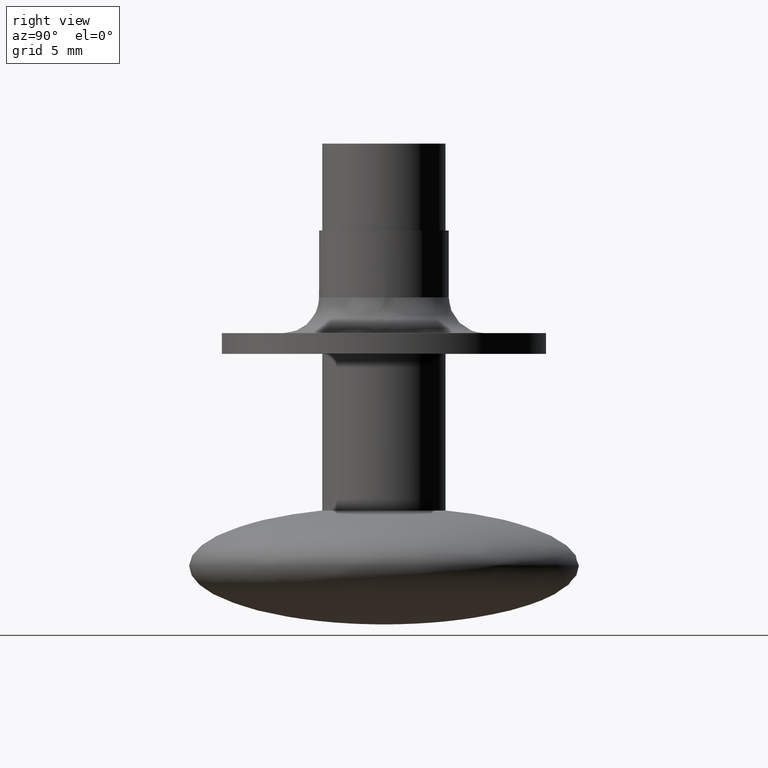
[diagram: clean part render]
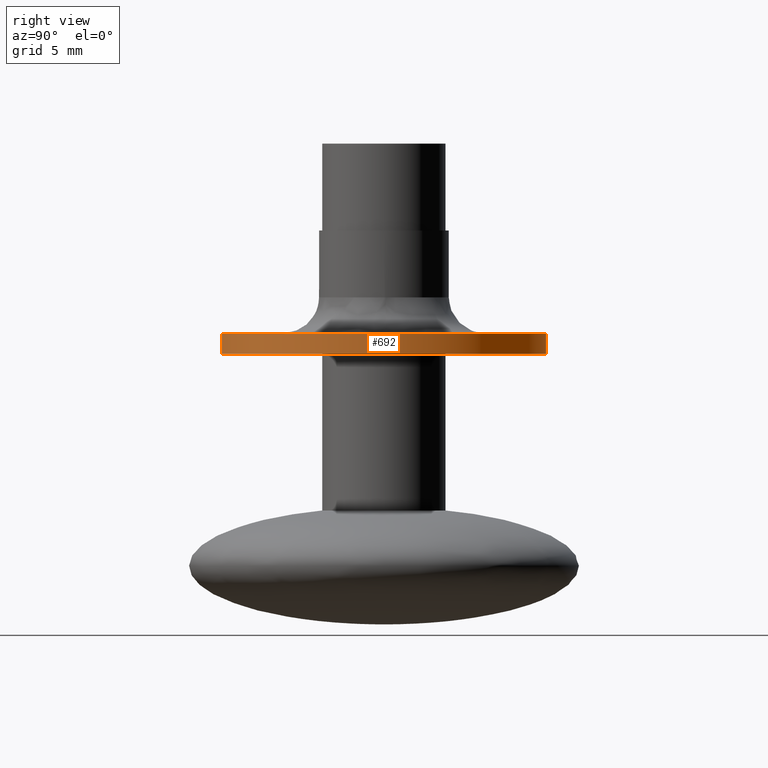
[diagram: same view with one face highlighted and labeled with its STEP entity id]
A machine part, right view. The second image highlights one B-rep face of the part: STEP entity #692.
In plain terms, the highlighted face is a freeform B-spline surface patch.
Its self-contained STEP definition (entity closure, byte-faithful):
#590=CARTESIAN_POINT('',(-1.475427933209480,12.412619079545834,-14.544758999999900));
#591=CARTESIAN_POINT('',(-1.120184107974721,12.454845193107571,-14.544758999999896));
#592=CARTESIAN_POINT('',(-0.763106744185712,12.476684980273340,-14.544758999999900));
#593=CARTESIAN_POINT('',(11.713578236087622,13.239791724459048,-14.544758999999905));
#594=CARTESIAN_POINT('',(12.476684980273340,0.763106744185712,-14.544758999999900));
#595=CARTESIAN_POINT('',(13.239791724459048,-11.713578236087622,-14.544758999999905));
#596=CARTESIAN_POINT('',(0.763106744185712,-12.476684980273340,-14.544758999999900));
#597=CARTESIAN_POINT('',(-1.475427933209480,12.412619079545834,-16.225758999999904));
#598=CARTESIAN_POINT('',(-1.120184107974721,12.454845193107571,-16.225758999999904));
#599=CARTESIAN_POINT('',(-0.763106744185712,12.476684980273340,-16.225758999999901));
#600=CARTESIAN_POINT('',(11.713578236087622,13.239791724459048,-16.225758999999908));
#601=CARTESIAN_POINT('',(12.476684980273340,0.763106744185712,-16.225758999999901));
#602=CARTESIAN_POINT('',(13.239791724459048,-11.713578236087622,-16.225758999999908));
#603=CARTESIAN_POINT('',(0.763106744185712,-12.476684980273340,-16.225758999999901));
#611=(BOUNDED_SURFACE()B_SPLINE_SURFACE(2,1,((#590,#597),(#591,#598),(#592,#599),(#593,#600),(#594,#601),(#595,#602),(#596,#603)),.UNSPECIFIED.,.F.,.F.,.U.)B_SPLINE_SURFACE_WITH_KNOTS((3,2,2,3),(2,2),(0.0,0.828427124746191,21.539105243400940,42.249783362055702),(0.0,1.0),.UNSPECIFIED.)GEOMETRIC_REPRESENTATION_ITEM()RATIONAL_B_SPLINE_SURFACE(((0.977505800795127,0.977505800795127),(0.988284271247462,0.988284271247462),(1.0,1.0),(0.707106781186548,0.707106781186548),(1.0,1.0),(0.707106781186548,0.707106781186548),(1.0,1.0)))REPRESENTATION_ITEM('')SURFACE());
#612=CARTESIAN_POINT('',(-1.475427805725460,12.412619094699240,-14.584758999999901));
#613=VERTEX_POINT('',#612);
#614=CARTESIAN_POINT('',(12.500000000000000,0.0,-14.584758999999901));
#615=VERTEX_POINT('',#614);
#616=CARTESIAN_POINT('',(-1.475427805725460,12.412619094699240,-14.584758999999899));
#617=CARTESIAN_POINT('',(-0.740301366817110,12.500000000000004,-14.584758999999904));
#618=CARTESIAN_POINT('',(0.0,12.500000000000000,-14.584758999999901));
#619=CARTESIAN_POINT('',(12.499999999999998,12.499999999999998,-14.584758999999902));
#620=CARTESIAN_POINT('',(12.500000000000000,0.0,-14.584758999999901));
#628=(BOUNDED_CURVE()B_SPLINE_CURVE(2,(#616,#617,#618,#619,#620),.UNSPECIFIED.,.F.,.U.)B_SPLINE_CURVE_WITH_KNOTS((3,2,3),(0.229562476987146,0.250000000000000,0.500000000000000),.UNSPECIFIED.)CURVE()GEOMETRIC_REPRESENTATION_ITEM()RATIONAL_B_SPLINE_CURVE((0.956026760992171,0.976055952400765,1.0,0.707106781186547,1.0))REPRESENTATION_ITEM(''));
#629=EDGE_CURVE('',#613,#615,#628,.T.);
#630=ORIENTED_EDGE('',*,*,#629,.T.);
#631=CARTESIAN_POINT('',(0.763103255939634,-12.476685193622631,-14.584758999999851));
#632=VERTEX_POINT('',#631);
#633=CARTESIAN_POINT('',(12.500000000000000,0.0,-14.584758999999901));
#634=CARTESIAN_POINT('',(12.500000000000002,-11.758829130011145,-14.584758999999901));
#635=CARTESIAN_POINT('',(0.763103255939634,-12.476685193622632,-14.584758999999853));
#643=(BOUNDED_CURVE()B_SPLINE_CURVE(2,(#633,#634,#635),.UNSPECIFIED.,.F.,.U.)B_SPLINE_CURVE_WITH_KNOTS((3,3),(0.500000000000000,0.739333010482802),.UNSPECIFIED.)CURVE()GEOMETRIC_REPRESENTATION_ITEM()RATIONAL_B_SPLINE_CURVE((1.0,0.719603936765513,0.976072145062513))REPRESENTATION_ITEM(''));
#644=EDGE_CURVE('',#615,#632,#643,.T.);
#645=ORIENTED_EDGE('',*,*,#644,.T.);
#646=CARTESIAN_POINT('',(0.763103298007722,-12.476685191049659,-16.184758999999900));
#647=VERTEX_POINT('',#646);
#648=CARTESIAN_POINT('',(0.763103255939634,-12.476685193622631,-14.584758999999851));
#649=CARTESIAN_POINT('',(0.763103298007722,-12.476685191049659,-16.184758999999900));
#650=QUASI_UNIFORM_CURVE('',1,(#648,#649),.UNSPECIFIED.,.F.,.U.);
#651=EDGE_CURVE('',#632,#647,#650,.T.);
#652=ORIENTED_EDGE('',*,*,#651,.T.);
#653=CARTESIAN_POINT('',(12.500000000000000,0.0,-16.184758999999900));
#654=VERTEX_POINT('',#653);
#655=CARTESIAN_POINT('',(12.500000000000000,0.0,-16.184758999999900));
#656=CARTESIAN_POINT('',(12.500000000000000,-11.758829090289387,-16.184758999999900));
#657=CARTESIAN_POINT('',(0.763103298007722,-12.476685191049659,-16.184758999999904));
#665=(BOUNDED_CURVE()B_SPLINE_CURVE(2,(#655,#656,#657),.UNSPECIFIED.,.F.,.U.)B_SPLINE_CURVE_WITH_KNOTS((3,3),(0.500000000000000,0.739333009901020),.UNSPECIFIED.)CURVE()GEOMETRIC_REPRESENTATION_ITEM()RATIONAL_B_SPLINE_CURVE((1.0,0.719603937447114,0.976072143815642))REPRESENTATION_ITEM(''));
#666=EDGE_CURVE('',#654,#647,#665,.T.);
#667=ORIENTED_EDGE('',*,*,#666,.F.);
#668=CARTESIAN_POINT('',(-1.475427807259749,12.412619094516860,-16.184758999999900));
#669=VERTEX_POINT('',#668);
#670=CARTESIAN_POINT('',(-1.475427807259750,12.412619094516867,-16.184758999999904));
#671=CARTESIAN_POINT('',(-0.740301368367620,12.499999999999996,-16.184758999999900));
#672=CARTESIAN_POINT('',(0.0,12.500000000000000,-16.184758999999900));
#673=CARTESIAN_POINT('',(12.499999999999998,12.499999999999998,-16.184758999999897));
#674=CARTESIAN_POINT('',(12.500000000000000,0.0,-16.184758999999900));
#682=(BOUNDED_CURVE()B_SPLINE_CURVE(2,(#670,#671,#672,#673,#674),.UNSPECIFIED.,.F.,.U.)B_SPLINE_CURVE_WITH_KNOTS((3,2,3),(0.229562476945366,0.250000000000000,0.500000000000000),.UNSPECIFIED.)CURVE()GEOMETRIC_REPRESENTATION_ITEM()RATIONAL_B_SPLINE_CURVE((0.956026760910281,0.976055952351816,1.0,0.707106781186547,1.0))REPRESENTATION_ITEM(''));
#683=EDGE_CURVE('',#669,#654,#682,.T.);
#684=ORIENTED_EDGE('',*,*,#683,.F.);
#685=CARTESIAN_POINT('',(-1.475427805725460,12.412619094699240,-14.584758999999901));
#686=CARTESIAN_POINT('',(-1.475427807259749,12.412619094516860,-16.184758999999900));
#687=QUASI_UNIFORM_CURVE('',1,(#685,#686),.UNSPECIFIED.,.F.,.U.);
#688=EDGE_CURVE('',#613,#669,#687,.T.);
#689=ORIENTED_EDGE('',*,*,#688,.F.);
#690=EDGE_LOOP('',(#630,#645,#652,#667,#684,#689));
#691=FACE_OUTER_BOUND('',#690,.T.);
#692=ADVANCED_FACE('',(#691),#611,.T.);